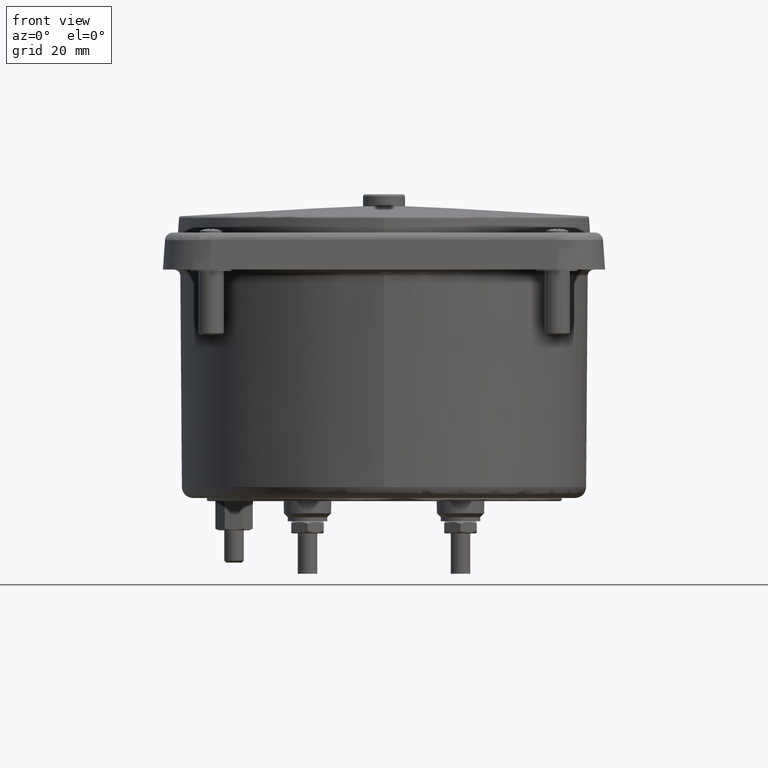
[diagram: clean part render]
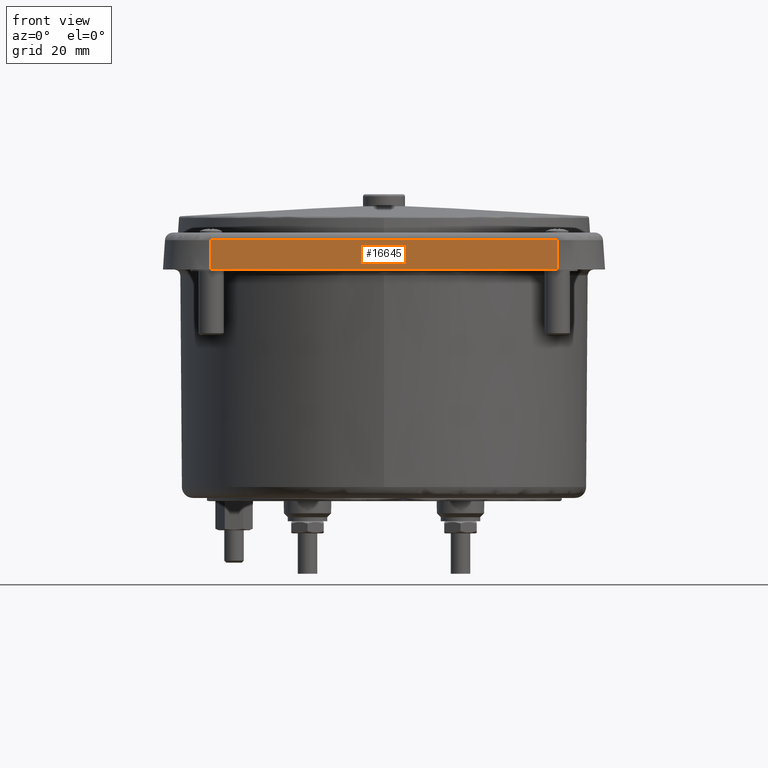
[diagram: same view with one face highlighted and labeled with its STEP entity id]
A machine part, front view. The second image highlights one B-rep face of the part: STEP entity #16645.
In plain terms, the highlighted planar face has unit normal (0, -0.9976, 0.0698).
Its self-contained STEP definition (entity closure, byte-faithful):
#1499 = VERTEX_POINT ( 'NONE', #3825 ) ;
#1614 = VERTEX_POINT ( 'NONE', #17932 ) ;
#2230 = DIRECTION ( 'NONE',  ( -0.000000000000000000, 0.06975647374412530244, 0.9975640502598241977 ) ) ;
#2304 = VERTEX_POINT ( 'NONE', #12378 ) ;
#3255 = ORIENTED_EDGE ( 'NONE', *, *, #6719, .F. ) ;
#3825 = CARTESIAN_POINT ( 'NONE',  ( 1.687007875410368118, -2.133475101229417081, 2.357098934940882184 ) ) ;
#3877 = CARTESIAN_POINT ( 'NONE',  ( 1.687007875416897562, -2.153543305988999901, 2.070110236220472189 ) ) ;
#4387 = ORIENTED_EDGE ( 'NONE', *, *, #7415, .T. ) ;
#4428 = AXIS2_PLACEMENT_3D ( 'NONE', #19213, #17236, #10787 ) ;
#5209 = VECTOR ( 'NONE', #17893, 39.37007874015748143 ) ;
#5562 = VECTOR ( 'NONE', #2230, 39.37007874015748854 ) ;
#6719 = EDGE_CURVE ( 'NONE', #7035, #1614, #17135, .T. ) ;
#7035 = VERTEX_POINT ( 'NONE', #18872 ) ;
#7192 = EDGE_CURVE ( 'NONE', #2304, #7035, #7501, .T. ) ;
#7415 = EDGE_CURVE ( 'NONE', #2304, #1499, #16865, .T. ) ;
#7501 = LINE ( 'NONE', #20869, #5209 ) ;
#7751 = CARTESIAN_POINT ( 'NONE',  ( 1.687007875416897562, -2.133475101223692771, 2.357098934940480284 ) ) ;
#9373 = PLANE ( 'NONE',  #4428 ) ;
#10475 = DIRECTION ( 'NONE',  ( -4.538536330175089566E-11, 0.06975647366454637566, 0.9975640502653888575 ) ) ;
#10787 = DIRECTION ( 'NONE',  ( 0.000000000000000000, -0.06975647374412533019, -0.9975640502598244197 ) ) ;
#12378 = CARTESIAN_POINT ( 'NONE',  ( 1.687007875265125856, -2.153543305988999901, 2.070110236220472189 ) ) ;
#12775 = DIRECTION ( 'NONE',  ( -1.000000000000000000, -6.474599080580000220E-10, 4.527480723173429813E-11 ) ) ;
#12983 = LINE ( 'NONE', #7751, #20960 ) ;
#13509 = EDGE_LOOP ( 'NONE', ( #3255, #14842, #4387, #17864 ) ) ;
#14842 = ORIENTED_EDGE ( 'NONE', *, *, #7192, .F. ) ;
#16337 = VECTOR ( 'NONE', #10475, 39.37007874015748854 ) ;
#16645 = ADVANCED_FACE ( 'NONE', ( #18991 ), #9373, .T. ) ;
#16865 = LINE ( 'NONE', #3877, #5562 ) ;
#17135 = LINE ( 'NONE', #20900, #16337 ) ;
#17236 = DIRECTION ( 'NONE',  ( 6.490409391651221763E-10, -0.9975640502598243087, 0.06975647374412533019 ) ) ;
#17864 = ORIENTED_EDGE ( 'NONE', *, *, #19896, .T. ) ;
#17893 = DIRECTION ( 'NONE',  ( -1.000000000000000000, 0.000000000000000000, 0.000000000000000000 ) ) ;
#17932 = CARTESIAN_POINT ( 'NONE',  ( -1.687007872627659388, -2.133475103427692865, 2.357098934979472649 ) ) ;
#18872 = CARTESIAN_POINT ( 'NONE',  ( -1.687007872766371985, -2.153543307086614345, 2.070110236220472189 ) ) ;
#18991 = FACE_OUTER_BOUND ( 'NONE', #13509, .T. ) ;
#19213 = CARTESIAN_POINT ( 'NONE',  ( 1.687007875416897562, -2.153543305988999901, 2.070110236220472189 ) ) ;
#19896 = EDGE_CURVE ( 'NONE', #1499, #1614, #12983, .T. ) ;
#20869 = CARTESIAN_POINT ( 'NONE',  ( 2.305380921159354548E-09, -2.153543305988999901, 2.070110236220472189 ) ) ;
#20900 = CARTESIAN_POINT ( 'NONE',  ( -1.687007872614602277, -2.153543308184224347, 2.070110236220472189 ) ) ;
#20960 = VECTOR ( 'NONE', #12775, 39.37007874015748143 ) ;